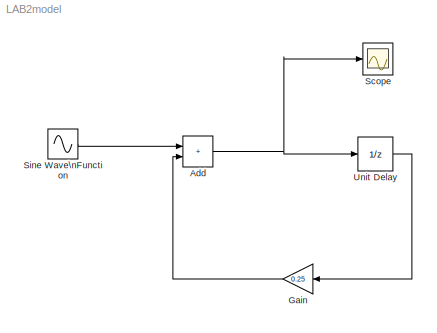
MODEL LAB2model
KIND model
BLOCK [Sum] Add
  IconShape = rectangular
  Ports = [2, 1]
  SID = 6
BLOCK [Gain] Gain
  Gain = 0.25
  NameLocation = top
  SID = 5
BLOCK [Scope] Scope
  Floating = off
  NumInputPorts = 1
  Ports = [1]
  SID = 2
  ScopeSpecificationString = Simulink.scopes.TimeScopeBlockCfg('CurrentConfiguration', extmgr.ConfigurationSet(extmgr.Configuration('Core','General UI',true),extmgr.Configuration('Core','Source UI',true),extmgr.Configuration('Sources','WiredSimulink',true),extmgr.Configuration('Visuals','Time Domain',true,'SerializedDisplays',{struct('MinYLimReal','-1.64964','MaxYLimReal','1.64964','YLabelReal','','MinYLimMag','0.00000','MaxY...<+1387ch>
BLOCK [Sin] Sine Wave\nFunction
  Frequency = 2*pi*(1/150)
  Ports = [0, 1]
  SID = 1
  SampleTime = 5
BLOCK [UnitDelay] Unit Delay
  HasFrameUpgradeWarning = on
  SID = 4
  SampleTime = -1
NET Add:1 -> Scope:1, Unit Delay:1
LINE Gain:1 -> Add:2
LINE Sine Wave\nFunction:1 -> Add:1
LINE Unit Delay:1 -> Gain:1
note: NET lines group one-source signal fan-out (src -> all destinations, sorted); 1:1 wires keep LINE
